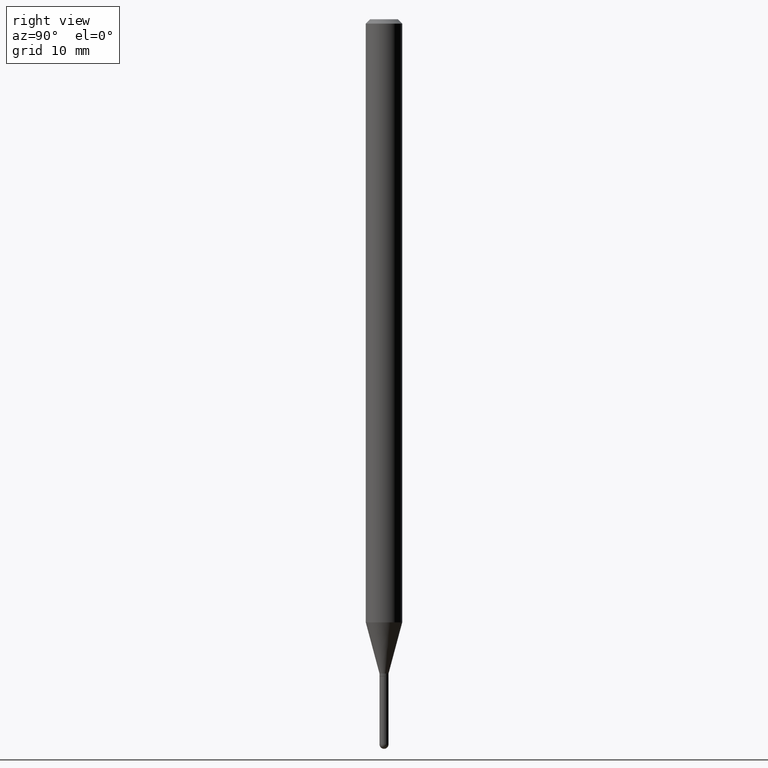
[diagram: clean part render]
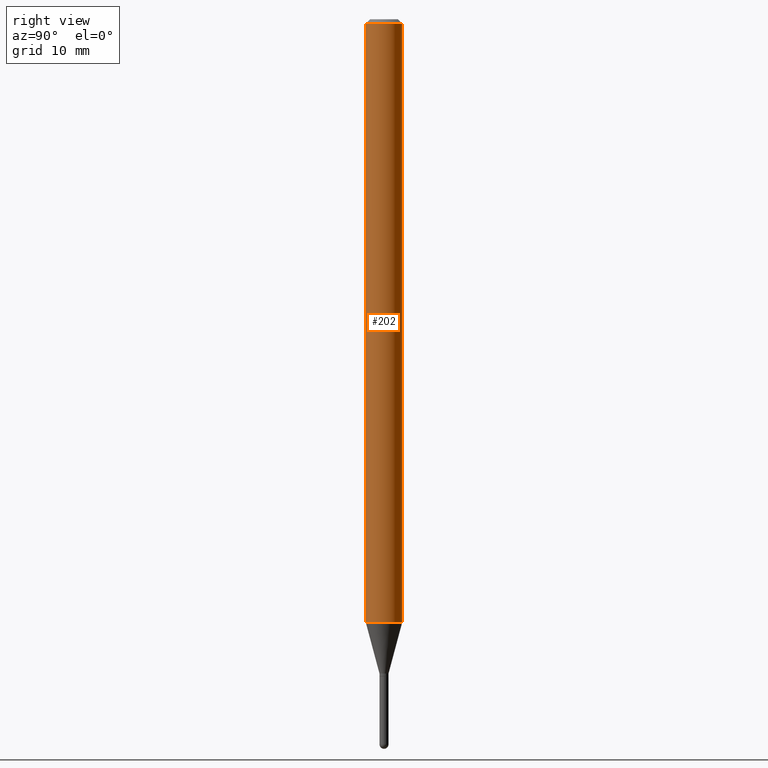
[diagram: same view with one face highlighted and labeled with its STEP entity id]
A machine part, right view. The second image highlights one B-rep face of the part: STEP entity #202.
In plain terms, the highlighted cylindrical surface (edge-blend (fillet) strip) has radius 1.5875 mm, axis along (-0, 0, 1).
Its self-contained STEP definition (entity closure, byte-faithful):
#25 = CYLINDRICAL_SURFACE ( 'NONE', #374, 0.06250000000000000000 ) ;
#49 = DIRECTION ( 'NONE',  ( -6.982962677686265922E-15, -1.000000000000000000, 4.370956789862821150E-15 ) ) ;
#50 = DIRECTION ( 'NONE',  ( -2.445469197505109755E-29, 3.491480778450671606E-15, 1.000000000000000000 ) ) ;
#71 = CARTESIAN_POINT ( 'NONE',  ( -4.364351673553912750E-16, -0.06250000000000005551, -0.01499999999999979128 ) ) ;
#89 = CARTESIAN_POINT ( 'NONE',  ( 4.440892098501129061E-16, 0.06249999999999276967, -2.066593612044262507 ) ) ;
#110 = EDGE_LOOP ( 'NONE', ( #436, #237, #298, #509 ) ) ;
#111 = EDGE_CURVE ( 'NONE', #351, #384, #201, .T. ) ;
#126 = EDGE_CURVE ( 'NONE', #426, #351, #148, .T. ) ;
#148 = CIRCLE ( 'NONE', #157, 0.06250000000000000000 ) ;
#157 = AXIS2_PLACEMENT_3D ( 'NONE', #408, #50, #49 ) ;
#176 = FACE_OUTER_BOUND ( 'NONE', #110, .T. ) ;
#191 = CARTESIAN_POINT ( 'NONE',  ( -4.364351673553412316E-16, -0.06250000000000721645, -2.066593612044262063 ) ) ;
#198 = DIRECTION ( 'NONE',  ( -2.445469197505110035E-29, 3.491480778450671606E-15, 1.000000000000000000 ) ) ;
#201 = LINE ( 'NONE', #284, #272 ) ;
#202 = ADVANCED_FACE ( 'NONE', ( #176 ), #25, .T. ) ;
#211 = CARTESIAN_POINT ( 'NONE',  ( 4.440892098501133991E-16, 0.06249999999999993755, -0.01500000000000022669 ) ) ;
#237 = ORIENTED_EDGE ( 'NONE', *, *, #111, .T. ) ;
#259 = EDGE_CURVE ( 'NONE', #458, #384, #404, .T. ) ;
#261 = CARTESIAN_POINT ( 'NONE',  ( -4.364351673553916201E-16, -0.06250000000000000000, 2.182175486531669754E-16 ) ) ;
#266 = DIRECTION ( 'NONE',  ( -6.982962677686265922E-15, -1.000000000000000000, 3.483106191921935554E-15 ) ) ;
#269 = CARTESIAN_POINT ( 'NONE',  ( 3.668203796257666962E-31, -5.237221167676010219E-17, -0.01500000000000000812 ) ) ;
#272 = VECTOR ( 'NONE', #198, 39.37007874015748143 ) ;
#277 = EDGE_CURVE ( 'NONE', #426, #458, #389, .T. ) ;
#284 = CARTESIAN_POINT ( 'NONE',  ( 4.440892098500625669E-16, 0.06250000000000000000, -2.182175486531669754E-16 ) ) ;
#298 = ORIENTED_EDGE ( 'NONE', *, *, #259, .F. ) ;
#340 = DIRECTION ( 'NONE',  ( -6.982962677686265922E-15, -1.000000000000000000, 3.491480778450671606E-15 ) ) ;
#351 = VERTEX_POINT ( 'NONE', #89 ) ;
#360 = DIRECTION ( 'NONE',  ( -2.445469197505109755E-29, 3.491480778450671606E-15, 1.000000000000000000 ) ) ;
#374 = AXIS2_PLACEMENT_3D ( 'NONE', #419, #379, #340 ) ;
#379 = DIRECTION ( 'NONE',  ( -2.445469197505109755E-29, 3.491480778450671606E-15, 1.000000000000000000 ) ) ;
#384 = VERTEX_POINT ( 'NONE', #211 ) ;
#386 = VECTOR ( 'NONE', #474, 39.37007874015748143 ) ;
#389 = LINE ( 'NONE', #261, #386 ) ;
#404 = CIRCLE ( 'NONE', #437, 0.06250000000000000000 ) ;
#408 = CARTESIAN_POINT ( 'NONE',  ( 5.053791022015068069E-29, -7.215471873321485568E-15, -2.066593612044262507 ) ) ;
#419 = CARTESIAN_POINT ( 'NONE',  ( 0.000000000000000000, 0.000000000000000000, 0.000000000000000000 ) ) ;
#426 = VERTEX_POINT ( 'NONE', #191 ) ;
#436 = ORIENTED_EDGE ( 'NONE', *, *, #126, .T. ) ;
#437 = AXIS2_PLACEMENT_3D ( 'NONE', #269, #360, #266 ) ;
#458 = VERTEX_POINT ( 'NONE', #71 ) ;
#474 = DIRECTION ( 'NONE',  ( -2.445469197505110035E-29, 3.491480778450671606E-15, 1.000000000000000000 ) ) ;
#509 = ORIENTED_EDGE ( 'NONE', *, *, #277, .F. ) ;